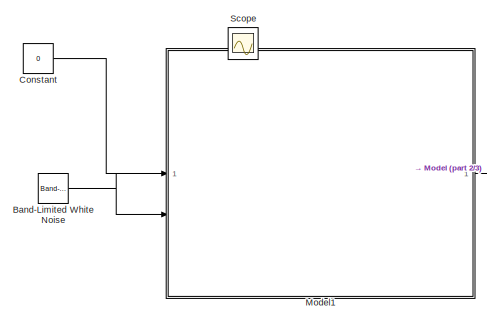
[diagram: root canvas - part 1/3, top left region]
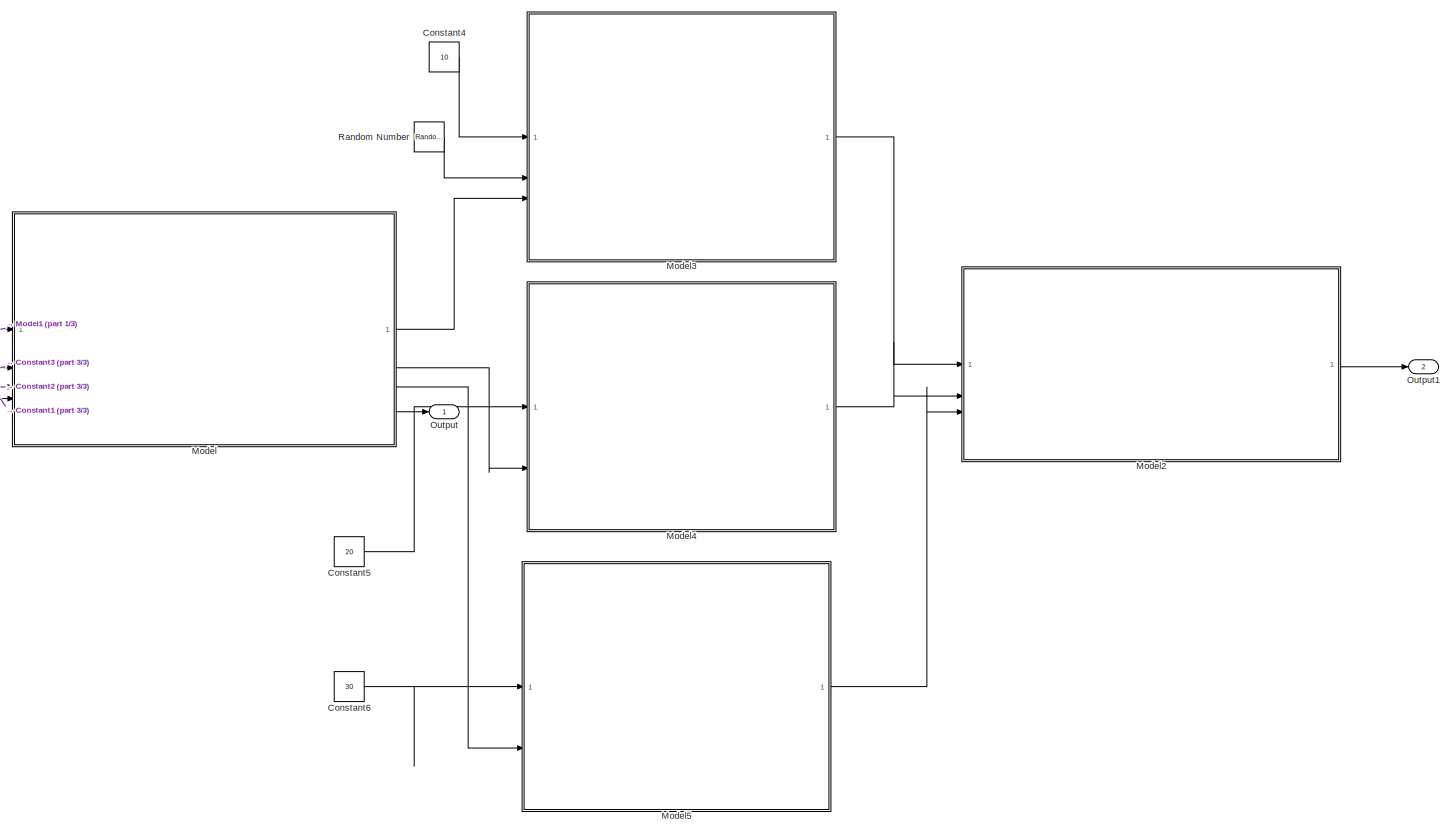
[diagram: root canvas - part 2/3, center side, full height]
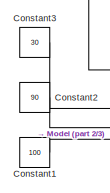
[diagram: root canvas - part 3/3, middle left region]
MODEL slx_de9beca4cf85
KIND model
CONFIG AbsTol = auto
CONFIG EnableMultiTasking = off
CONFIG FixedStep = 1
CONFIG MaxStep = .1
CONFIG MinStep = auto
CONFIG RelTol = 1e-3
CONFIG SampleTimeConstraint = Unconstrained
CONFIG SolverName = VariableStepAuto
CONFIG StartTime = 0.0
CONFIG StopTime = 20
BLOCK [Reference] Band-Limited White Noise  REF=simulink/Sources/Band-Limited
White Noise
  SourceBlock = simulink/Sources/Band-Limited\nWhite Noise
  SourceType = Band-Limited White Noise.
BLOCK [Constant] Constant
  Value = 0
BLOCK [Constant] Constant1
  Value = 100
BLOCK [Constant] Constant2
  Value = 90
BLOCK [Constant] Constant3
  Value = 30
BLOCK [Constant] Constant4
  Value = 10
BLOCK [Constant] Constant5
  Value = 20
BLOCK [Constant] Constant6
  Value = 30
BLOCK [ModelReference] Model
  ModelNameDialog = mseCaseOfFour.slx
  ModelReferenceVersion = 1.14
BLOCK [ModelReference] Model1
  ModelNameDialog = mseDelay.slx
  ModelReferenceVersion = 1.7
BLOCK [ModelReference] Model2
  ModelNameDialog = mseCaseMuxOfFour.slx
  ModelReferenceVersion = 1.5
BLOCK [ModelReference] Model3
  ModelNameDialog = mseDelay.slx
  ModelReferenceVersion = 1.7
BLOCK [ModelReference] Model4
  ModelNameDialog = mseDelay.slx
  ModelReferenceVersion = 1.7
  PortSchema = {"entries":[{"content":{"sides":[{"content":{"connectorIds":["In2","In3","In1"]},"type":"ConnectorPlacement.EquallySpacedRectSide","uuid":"49f3e86f-0adf-41fc-85ec-5be0cbef3cd0"},{"content":{"connectorIds":["Out1"],"side":"RIGHT"},"type":"ConnectorPlacement.EquallySpacedRectSide","uuid":"012fc00d-9423-4eca-973e-f184ade09ed6"},{"content":{"side":"TOP"},"type":"ConnectorPlacement.EquallySpacedRectSid...<+234ch>
BLOCK [ModelReference] Model5
  ModelNameDialog = mseDelay.slx
  ModelReferenceVersion = 1.7
  PortSchema = {"entries":[{"content":{"sides":[{"content":{"connectorIds":["In2","In3","In1"]},"type":"ConnectorPlacement.EquallySpacedRectSide","uuid":"49f3e86f-0adf-41fc-85ec-5be0cbef3cd0"},{"content":{"connectorIds":["Out1"],"side":"RIGHT"},"type":"ConnectorPlacement.EquallySpacedRectSide","uuid":"012fc00d-9423-4eca-973e-f184ade09ed6"},{"content":{"side":"TOP"},"type":"ConnectorPlacement.EquallySpacedRectSid...<+234ch>
BLOCK [Outport] Output
BLOCK [Outport] Output1
  Port = 2
BLOCK [RandomNumber] Random Number
  SampleTime = 0.1
  Variance = 0.2
BLOCK [Scope] Scope
  Floating = off
  IOType = viewer
  NumInputPorts = 1
  ScopeSpecificationString = Simulink.scopes.TimeScopeBlockCfg('CurrentConfiguration', extmgr.ConfigurationSet(extmgr.Configuration('Core','General UI',true),extmgr.Configuration('Core','Source UI',true),extmgr.Configuration('Sources','WiredSimulink',true),extmgr.Configuration('Visuals','Time Domain',true,'SerializedDisplays',{struct('MinYLimReal','6.15528','MaxYLimReal','33.4989','YLabelReal','','MinYLimMag','6.15528','MaxYL...<+1544ch>
LINE Band-Limited White Noise:1 -> Model1:2
LINE Constant1:1 -> Model:4
LINE Constant2:1 -> Model:3
LINE Constant3:1 -> Model:2
LINE Constant4:1 -> Model3:1
LINE Constant5:1 -> Model4:1
LINE Constant6:1 -> Model5:1
LINE Constant:1 -> Model1:1
LINE Model1:1 -> Model:1
LINE Model2:1 -> Output1:1
LINE Model3:1 -> Model2:1
LINE Model4:1 -> Model2:2
LINE Model5:1 -> Model2:3
LINE Model:1 -> Model3:3
LINE Model:2 -> Model4:3
LINE Model:3 -> Model5:3
LINE Model:4 -> Output:1
LINE Random Number:1 -> Model3:2
